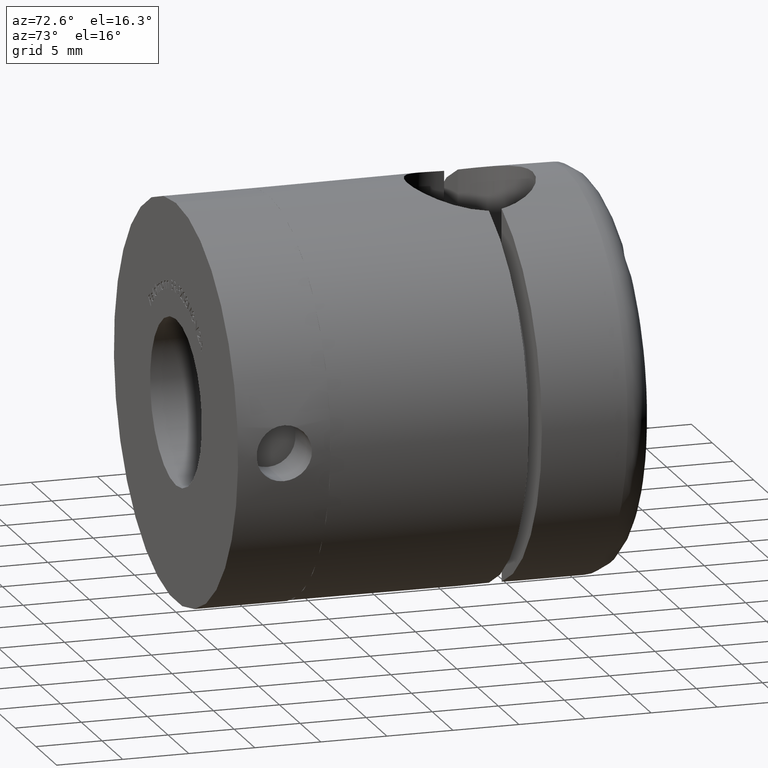
[diagram: clean part render]
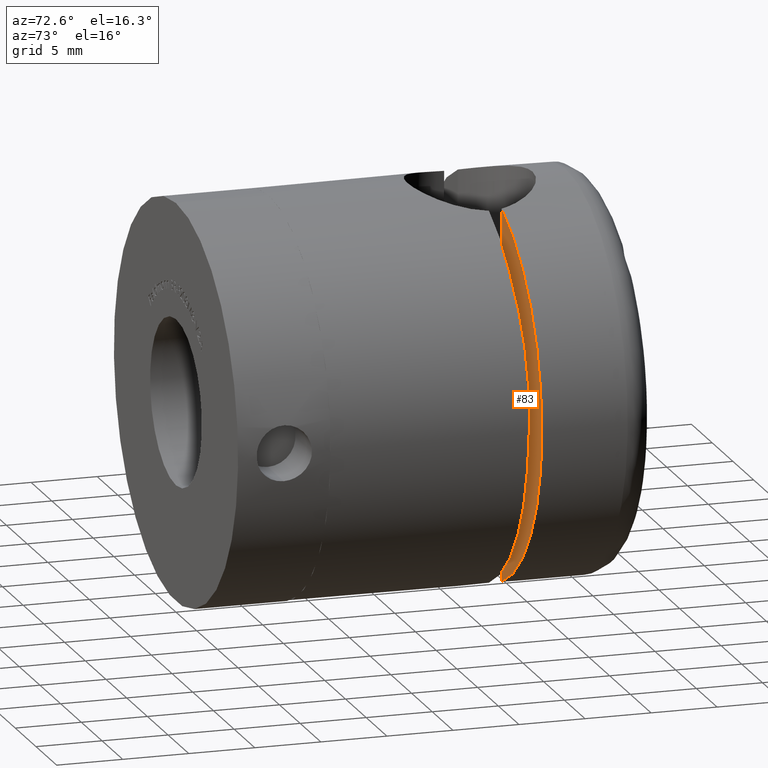
[diagram: same view with one face highlighted and labeled with its STEP entity id]
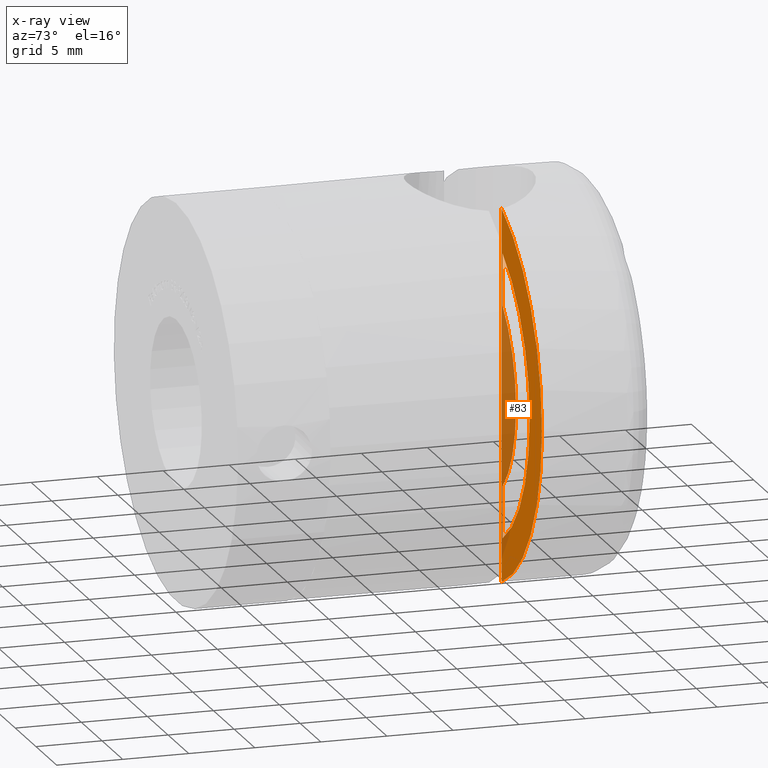
[diagram: x-ray of the same camera — body ghosted, the highlighted face saturated]
A machine part, auxiliary view. The second image highlights one B-rep face of the part: STEP entity #83.
The next image is the same camera in x-ray: the body ghosted, the highlighted face saturated — about 29% of this face is hidden behind the body in this view.
In plain terms, the highlighted planar face has unit normal (0, -1, 0).
Its self-contained STEP definition (entity closure, byte-faithful):
#83 = ADVANCED_FACE ( 'NONE', ( #9213, #10645 ), #2014, .T. ) ;
#245 = CARTESIAN_POINT ( 'NONE',  ( 5.499999999999996400, 10.00000000000000200, -30.00000000000000400 ) ) ;
#953 = VECTOR ( 'NONE', #5217, 1000.000000000000000 ) ;
#1140 = VERTEX_POINT ( 'NONE', #15799 ) ;
#1659 = VERTEX_POINT ( 'NONE', #11152 ) ;
#1833 = VERTEX_POINT ( 'NONE', #2638 ) ;
#1977 = LINE ( 'NONE', #11625, #4444 ) ;
#2014 = PLANE ( 'NONE',  #11482 ) ;
#2154 = EDGE_CURVE ( 'NONE', #13739, #1833, #14752, .T. ) ;
#2208 = DIRECTION ( 'NONE',  ( 0.0000000000000000000, 0.0000000000000000000, 1.000000000000000000 ) ) ;
#2275 = CARTESIAN_POINT ( 'NONE',  ( 0.0000000000000000000, 10.00000000000000200, 0.0000000000000000000 ) ) ;
#2279 = VERTEX_POINT ( 'NONE', #3941 ) ;
#2626 = ORIENTED_EDGE ( 'NONE', *, *, #3811, .F. ) ;
#2638 = CARTESIAN_POINT ( 'NONE',  ( 5.291502622129181400, 10.00000000000000000, -14.03566884761819900 ) ) ;
#2794 = CIRCLE ( 'NONE', #6835, 12.05000000000000100 ) ;
#3100 = EDGE_LOOP ( 'NONE', ( #12050, #3736, #2626, #10811 ) ) ;
#3156 = ORIENTED_EDGE ( 'NONE', *, *, #5425, .F. ) ;
#3736 = ORIENTED_EDGE ( 'NONE', *, *, #10795, .F. ) ;
#3811 = EDGE_CURVE ( 'NONE', #1659, #4063, #13715, .T. ) ;
#3941 = CARTESIAN_POINT ( 'NONE',  ( 5.500000000000000900, 10.00000000000000000, 10.72159036710506000 ) ) ;
#4009 = CARTESIAN_POINT ( 'NONE',  ( 5.499999999999999100, 10.00000000000000200, -6.805328794408104900 ) ) ;
#4043 = AXIS2_PLACEMENT_3D ( 'NONE', #2275, #6184, #12663 ) ;
#4063 = VERTEX_POINT ( 'NONE', #4009 ) ;
#4350 = DIRECTION ( 'NONE',  ( 1.156482317317871500E-016, -0.0000000000000000000, 1.000000000000000000 ) ) ;
#4444 = VECTOR ( 'NONE', #15612, 1000.000000000000000 ) ;
#4729 = CARTESIAN_POINT ( 'NONE',  ( 0.0000000000000000000, 10.00000000000000000, 0.0000000000000000000 ) ) ;
#4986 = CARTESIAN_POINT ( 'NONE',  ( 5.499999999999996400, 10.00000000000000200, -30.00000000000000400 ) ) ;
#5217 = DIRECTION ( 'NONE',  ( 1.156482317317871500E-016, -0.0000000000000000000, 1.000000000000000000 ) ) ;
#5425 = EDGE_CURVE ( 'NONE', #13739, #1833, #1977, .T. ) ;
#5771 = DIRECTION ( 'NONE',  ( 0.0000000000000000000, 1.000000000000000000, 0.0000000000000000000 ) ) ;
#6011 = AXIS2_PLACEMENT_3D ( 'NONE', #12715, #11570, #2208 ) ;
#6184 = DIRECTION ( 'NONE',  ( -0.0000000000000000000, -1.000000000000000000, -0.0000000000000000000 ) ) ;
#6835 = AXIS2_PLACEMENT_3D ( 'NONE', #8572, #5771, #13891 ) ;
#8355 = EDGE_LOOP ( 'NONE', ( #14459, #3156 ) ) ;
#8572 = CARTESIAN_POINT ( 'NONE',  ( 0.0000000000000000000, 10.00000000000000000, 0.0000000000000000000 ) ) ;
#8580 = DIRECTION ( 'NONE',  ( 0.0000000000000000000, -0.0000000000000000000, 1.000000000000000000 ) ) ;
#8746 = DIRECTION ( 'NONE',  ( 0.0000000000000000000, 1.000000000000000000, 0.0000000000000000000 ) ) ;
#9213 = FACE_BOUND ( 'NONE', #3100, .T. ) ;
#9474 = EDGE_CURVE ( 'NONE', #1140, #2279, #15686, .T. ) ;
#9767 = VECTOR ( 'NONE', #4350, 1000.000000000000000 ) ;
#10617 = EDGE_CURVE ( 'NONE', #2279, #1659, #2794, .T. ) ;
#10645 = FACE_OUTER_BOUND ( 'NONE', #8355, .T. ) ;
#10795 = EDGE_CURVE ( 'NONE', #4063, #1140, #14183, .T. ) ;
#10811 = ORIENTED_EDGE ( 'NONE', *, *, #10617, .F. ) ;
#11152 = CARTESIAN_POINT ( 'NONE',  ( 5.499999999999999100, 10.00000000000000000, -10.72159036710506000 ) ) ;
#11482 = AXIS2_PLACEMENT_3D ( 'NONE', #4729, #8746, #8580 ) ;
#11570 = DIRECTION ( 'NONE',  ( 0.0000000000000000000, 1.000000000000000000, 0.0000000000000000000 ) ) ;
#11625 = CARTESIAN_POINT ( 'NONE',  ( 5.291502622129181400, 10.00000000000000000, -15.00000000000000000 ) ) ;
#12050 = ORIENTED_EDGE ( 'NONE', *, *, #9474, .F. ) ;
#12663 = DIRECTION ( 'NONE',  ( 0.0000000000000000000, 0.0000000000000000000, 1.000000000000000000 ) ) ;
#12715 = CARTESIAN_POINT ( 'NONE',  ( 0.0000000000000000000, 10.00000000000000000, 0.0000000000000000000 ) ) ;
#13057 = CARTESIAN_POINT ( 'NONE',  ( 5.291502622129181400, 10.00000000000000000, 14.03566884761819900 ) ) ;
#13715 = LINE ( 'NONE', #245, #9767 ) ;
#13739 = VERTEX_POINT ( 'NONE', #13057 ) ;
#13891 = DIRECTION ( 'NONE',  ( 0.0000000000000000000, 0.0000000000000000000, 1.000000000000000000 ) ) ;
#14183 = CIRCLE ( 'NONE', #4043, 8.750000000000001800 ) ;
#14459 = ORIENTED_EDGE ( 'NONE', *, *, #2154, .T. ) ;
#14752 = CIRCLE ( 'NONE', #6011, 15.00000000000000000 ) ;
#15612 = DIRECTION ( 'NONE',  ( 0.0000000000000000000, 0.0000000000000000000, -1.000000000000000000 ) ) ;
#15686 = LINE ( 'NONE', #4986, #953 ) ;
#15799 = CARTESIAN_POINT ( 'NONE',  ( 5.500000000000000900, 10.00000000000000200, 6.805328794408102200 ) ) ;